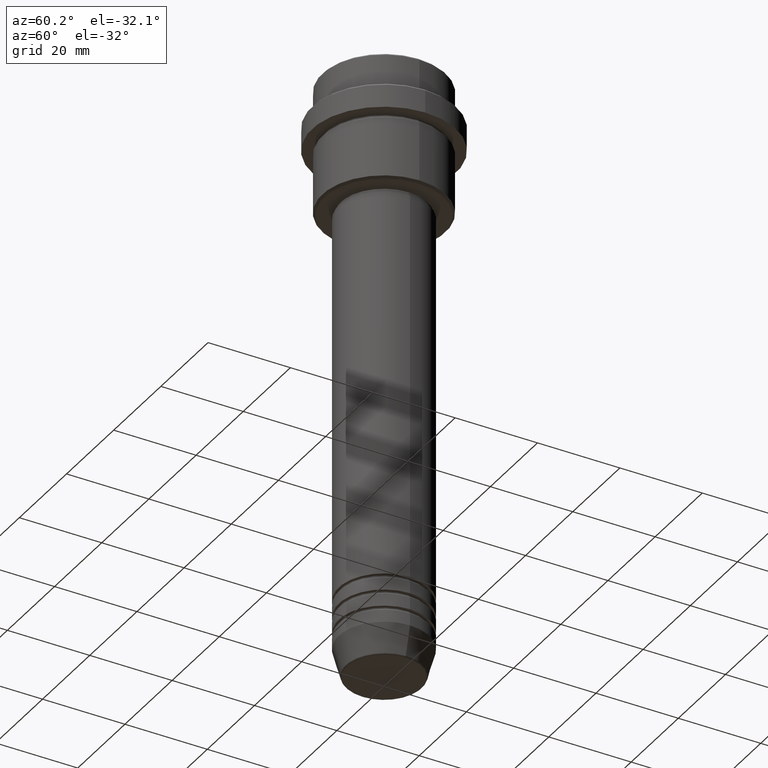
[diagram: clean part render]
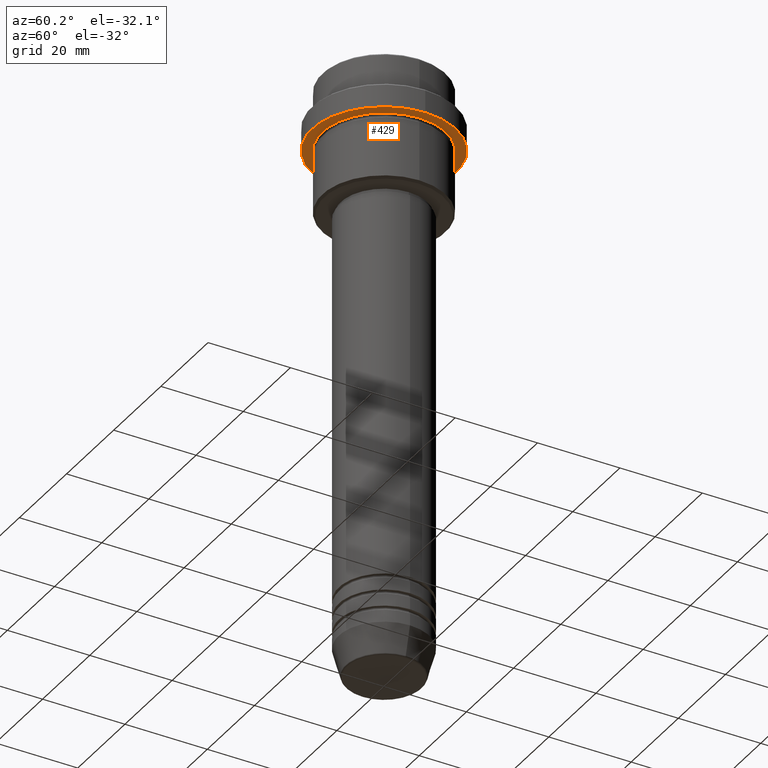
[diagram: same view with one face highlighted and labeled with its STEP entity id]
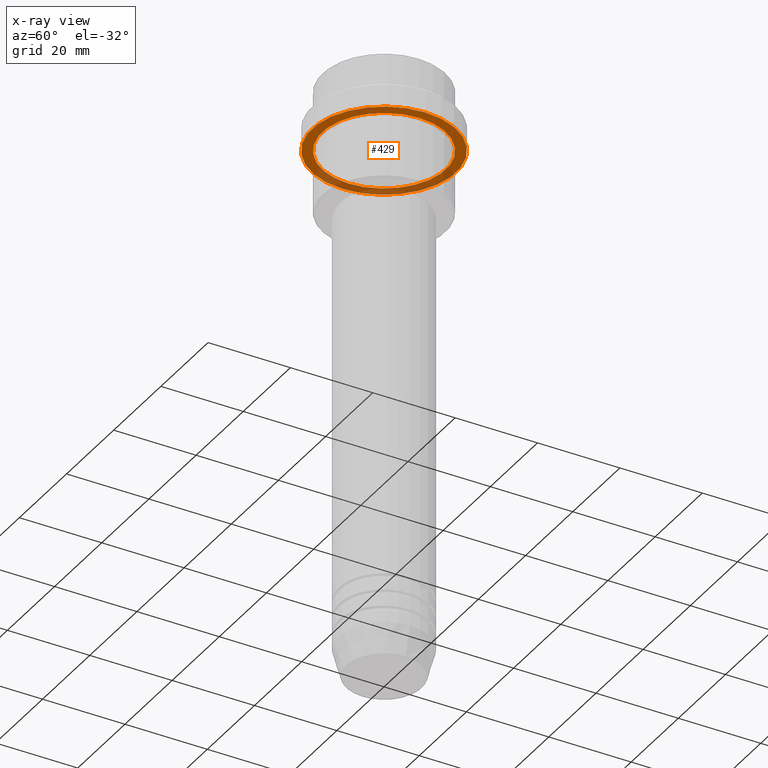
[diagram: x-ray of the same camera — body ghosted, the highlighted face saturated]
A machine part, auxiliary view. The second image highlights one B-rep face of the part: STEP entity #429.
The next image is the same camera in x-ray: the body ghosted, the highlighted face saturated — about 34% of this face is hidden behind the body in this view.
In plain terms, the highlighted planar face has unit normal (0, 0, -1).
Its self-contained STEP definition (entity closure, byte-faithful):
#15 = CARTESIAN_POINT ( 'NONE',  ( 0.000000000000000000, 0.000000000000000000, -14.99999999999998579 ) ) ;
#26 = CARTESIAN_POINT ( 'NONE',  ( 17.50000000000000000, 0.000000000000000000, -14.99999999999998757 ) ) ;
#51 = CARTESIAN_POINT ( 'NONE',  ( 14.99999999999999645, 1.836970198721029194E-15, -14.99999999999998579 ) ) ;
#89 = CARTESIAN_POINT ( 'NONE',  ( 0.000000000000000000, 0.000000000000000000, -14.99999999999998757 ) ) ;
#141 = VERTEX_POINT ( 'NONE', #51 ) ;
#188 = VERTEX_POINT ( 'NONE', #842 ) ;
#220 = CIRCLE ( 'NONE', #382, 17.50000000000000000 ) ;
#225 = EDGE_CURVE ( 'NONE', #188, #453, #1384, .T. ) ;
#348 = EDGE_LOOP ( 'NONE', ( #1080, #790 ) ) ;
#356 = AXIS2_PLACEMENT_3D ( 'NONE', #15, #1218, #895 ) ;
#382 = AXIS2_PLACEMENT_3D ( 'NONE', #89, #870, #528 ) ;
#411 = DIRECTION ( 'NONE',  ( -0.000000000000000000, -0.000000000000000000, 1.000000000000000000 ) ) ;
#429 = ADVANCED_FACE ( 'NONE', ( #922, #1362 ), #1220, .T. ) ;
#453 = VERTEX_POINT ( 'NONE', #26 ) ;
#528 = DIRECTION ( 'NONE',  ( 1.000000000000000000, 0.000000000000000000, 0.000000000000000000 ) ) ;
#535 = AXIS2_PLACEMENT_3D ( 'NONE', #943, #1383, #850 ) ;
#536 = CIRCLE ( 'NONE', #1315, 14.99999999999999645 ) ;
#549 = EDGE_LOOP ( 'NONE', ( #932, #1222 ) ) ;
#578 = CARTESIAN_POINT ( 'NONE',  ( 0.000000000000000000, 17.50000000000000000, -14.99999999999998579 ) ) ;
#695 = EDGE_CURVE ( 'NONE', #141, #765, #536, .T. ) ;
#709 = AXIS2_PLACEMENT_3D ( 'NONE', #578, #1112, #819 ) ;
#765 = VERTEX_POINT ( 'NONE', #1077 ) ;
#790 = ORIENTED_EDGE ( 'NONE', *, *, #695, .T. ) ;
#819 = DIRECTION ( 'NONE',  ( -1.000000000000000000, 0.000000000000000000, -0.000000000000000000 ) ) ;
#842 = CARTESIAN_POINT ( 'NONE',  ( -17.50000000000000000, 2.143131898507868248E-15, -14.99999999999998757 ) ) ;
#850 = DIRECTION ( 'NONE',  ( 1.000000000000000000, 0.000000000000000000, 0.000000000000000000 ) ) ;
#861 = EDGE_CURVE ( 'NONE', #765, #141, #1089, .T. ) ;
#870 = DIRECTION ( 'NONE',  ( -0.000000000000000000, -0.000000000000000000, 1.000000000000000000 ) ) ;
#895 = DIRECTION ( 'NONE',  ( -1.000000000000000000, 0.000000000000000000, 0.000000000000000000 ) ) ;
#922 = FACE_BOUND ( 'NONE', #348, .T. ) ;
#932 = ORIENTED_EDGE ( 'NONE', *, *, #1195, .F. ) ;
#943 = CARTESIAN_POINT ( 'NONE',  ( 0.000000000000000000, 0.000000000000000000, -14.99999999999998757 ) ) ;
#961 = CARTESIAN_POINT ( 'NONE',  ( 0.000000000000000000, 0.000000000000000000, -14.99999999999998579 ) ) ;
#1069 = DIRECTION ( 'NONE',  ( -1.000000000000000000, 0.000000000000000000, 0.000000000000000000 ) ) ;
#1077 = CARTESIAN_POINT ( 'NONE',  ( -14.99999999999999645, 0.000000000000000000, -14.99999999999998579 ) ) ;
#1080 = ORIENTED_EDGE ( 'NONE', *, *, #861, .T. ) ;
#1089 = CIRCLE ( 'NONE', #356, 14.99999999999999645 ) ;
#1112 = DIRECTION ( 'NONE',  ( 0.000000000000000000, 0.000000000000000000, -1.000000000000000000 ) ) ;
#1195 = EDGE_CURVE ( 'NONE', #453, #188, #220, .T. ) ;
#1218 = DIRECTION ( 'NONE',  ( -0.000000000000000000, -0.000000000000000000, 1.000000000000000000 ) ) ;
#1220 = PLANE ( 'NONE',  #709 ) ;
#1222 = ORIENTED_EDGE ( 'NONE', *, *, #225, .F. ) ;
#1315 = AXIS2_PLACEMENT_3D ( 'NONE', #961, #411, #1069 ) ;
#1362 = FACE_OUTER_BOUND ( 'NONE', #549, .T. ) ;
#1383 = DIRECTION ( 'NONE',  ( -0.000000000000000000, -0.000000000000000000, 1.000000000000000000 ) ) ;
#1384 = CIRCLE ( 'NONE', #535, 17.50000000000000000 ) ;